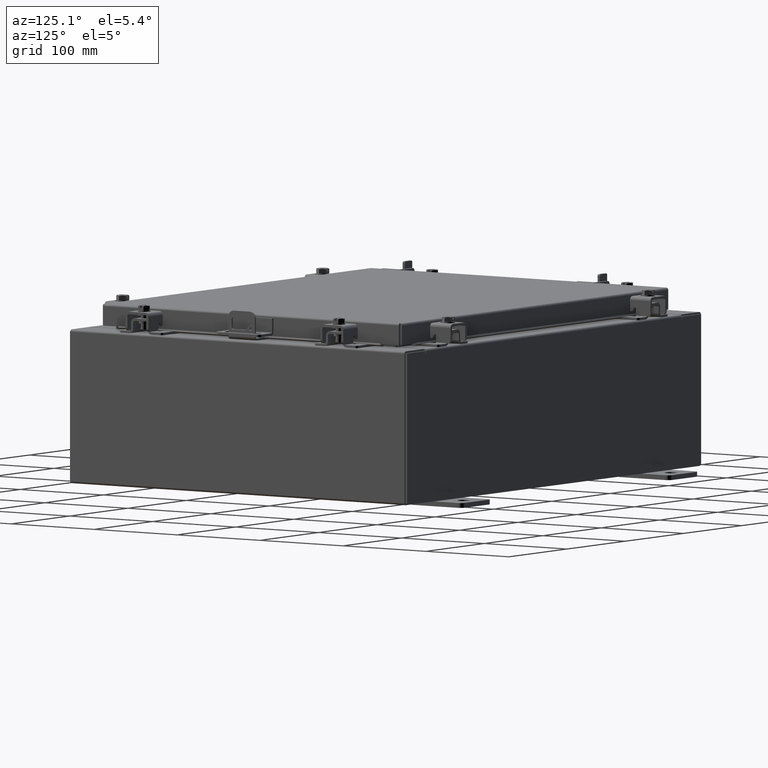
[diagram: clean part render]
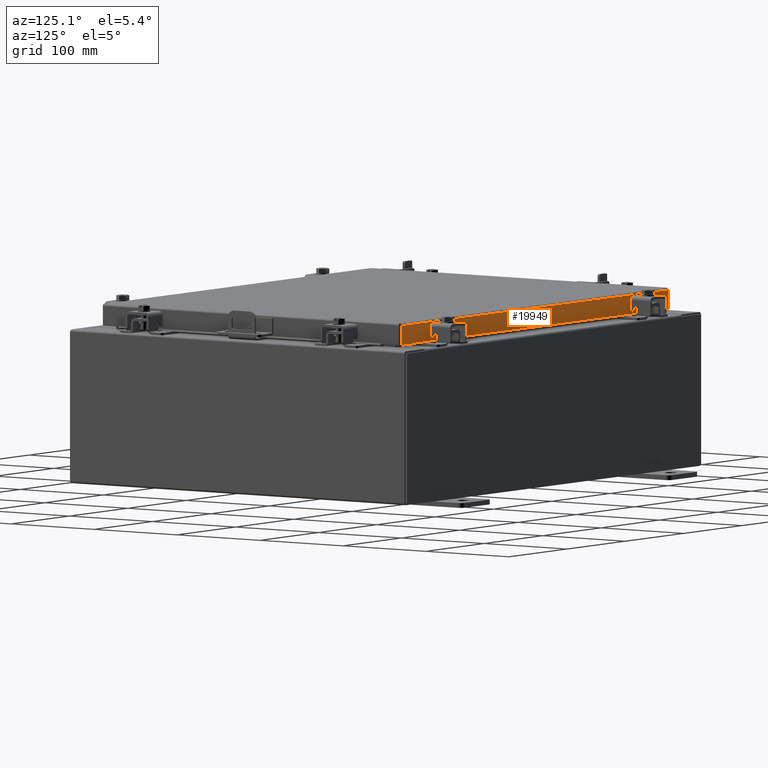
[diagram: same view with one face highlighted and labeled with its STEP entity id]
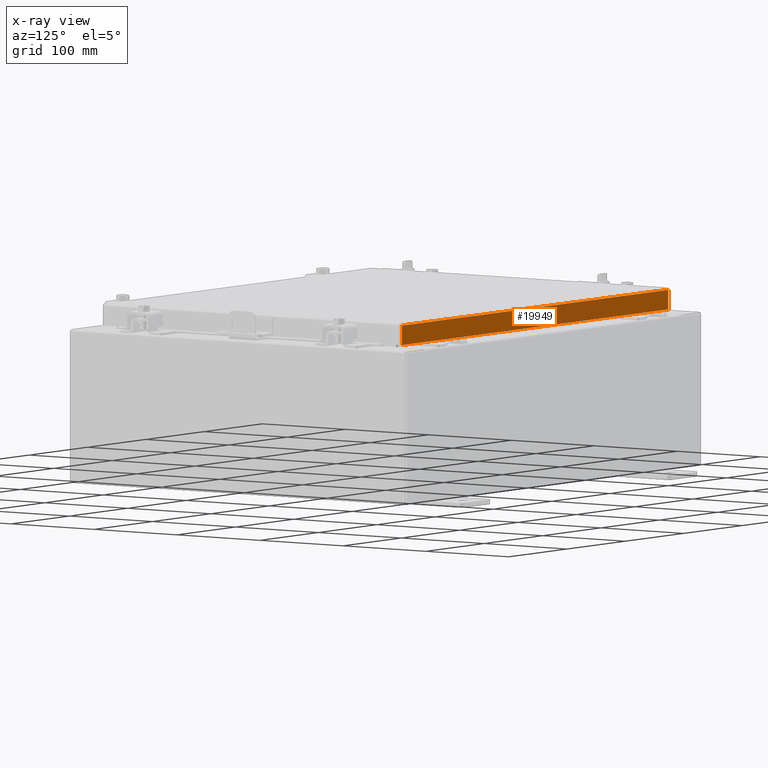
[diagram: x-ray of the same camera — body ghosted, the highlighted face saturated]
A machine part, auxiliary view. The second image highlights one B-rep face of the part: STEP entity #19949.
The next image is the same camera in x-ray: the body ghosted, the highlighted face saturated — about 0% of this face is hidden behind the body in this view.
In plain terms, the highlighted planar face has unit normal (0, -1, -0).
Its self-contained STEP definition (entity closure, byte-faithful):
#285 = CARTESIAN_POINT ( 'NONE',  ( -8.989157864376265300, 7.094000000000002100, -0.8500000000000019800 ) ) ;
#1084 = EDGE_CURVE ( 'NONE', #8246, #2258, #13635, .T. ) ;
#1391 = CARTESIAN_POINT ( 'NONE',  ( 8.239157864376270600, 7.094000000000000300, -0.8500000000000029800 ) ) ;
#1538 = CARTESIAN_POINT ( 'NONE',  ( -9.077999999999995900, 7.094000000000000300, -0.08770000000000007000 ) ) ;
#1670 = ORIENTED_EDGE ( 'NONE', *, *, #14073, .F. ) ;
#1929 = EDGE_LOOP ( 'NONE', ( #11310, #15492, #3639, #5063, #1670, #13531 ) ) ;
#2258 = VERTEX_POINT ( 'NONE', #1391 ) ;
#2531 = VECTOR ( 'NONE', #16522, 39.37007874015748100 ) ;
#3011 = LINE ( 'NONE', #3571, #2531 ) ;
#3110 = CARTESIAN_POINT ( 'NONE',  ( 8.989157864376270600, 7.094000000000002100, -0.8499999999999996400 ) ) ;
#3571 = CARTESIAN_POINT ( 'NONE',  ( -9.077999999999995900, 7.094000000000002100, -0.8500000000000019800 ) ) ;
#3639 = ORIENTED_EDGE ( 'NONE', *, *, #17680, .F. ) ;
#3850 = EDGE_CURVE ( 'NONE', #14026, #14796, #10724, .T. ) ;
#5063 = ORIENTED_EDGE ( 'NONE', *, *, #1084, .F. ) ;
#6727 = LINE ( 'NONE', #9022, #11012 ) ;
#6805 = DIRECTION ( 'NONE',  ( 3.605222026166235700E-031, -1.000000000000000000, -2.818880942772351900E-015 ) ) ;
#8246 = VERTEX_POINT ( 'NONE', #14688 ) ;
#8317 = CARTESIAN_POINT ( 'NONE',  ( -8.989157864376265300, 7.094000000000000300, -0.08770000000000007000 ) ) ;
#8410 = VECTOR ( 'NONE', #13768, 39.37007874015748100 ) ;
#8475 = AXIS2_PLACEMENT_3D ( 'NONE', #16486, #6805, #18116 ) ;
#9022 = CARTESIAN_POINT ( 'NONE',  ( -9.077999999999995900, 7.094000000000002100, -0.8500000000000019800 ) ) ;
#9289 = VECTOR ( 'NONE', #17477, 39.37007874015748100 ) ;
#10063 = CARTESIAN_POINT ( 'NONE',  ( 8.989157864376270600, 7.094000000000000300, -0.08770000000000007000 ) ) ;
#10556 = CARTESIAN_POINT ( 'NONE',  ( 8.989157864376270600, 7.094000000000000300, 2.025795506403864500E-014 ) ) ;
#10574 = DIRECTION ( 'NONE',  ( 1.000000000000000000, -4.379057701015054300E-047, 1.278955053213607000E-016 ) ) ;
#10724 = LINE ( 'NONE', #14223, #18328 ) ;
#11012 = VECTOR ( 'NONE', #10574, 39.37007874015748100 ) ;
#11310 = ORIENTED_EDGE ( 'NONE', *, *, #12591, .F. ) ;
#11397 = VECTOR ( 'NONE', #12841, 39.37007874015748100 ) ;
#11599 = PLANE ( 'NONE',  #8475 ) ;
#12521 = DIRECTION ( 'NONE',  ( -0.0000000000000000000, 2.818880942772351900E-015, -1.000000000000000000 ) ) ;
#12591 = EDGE_CURVE ( 'NONE', #18865, #14026, #20007, .T. ) ;
#12746 = LINE ( 'NONE', #10556, #8410 ) ;
#12841 = DIRECTION ( 'NONE',  ( -1.000000000000000000, -3.605222026166235700E-031, -9.826997386333233300E-046 ) ) ;
#13531 = ORIENTED_EDGE ( 'NONE', *, *, #3850, .F. ) ;
#13635 = LINE ( 'NONE', #13965, #9289 ) ;
#13768 = DIRECTION ( 'NONE',  ( 0.0000000000000000000, 2.818880942772351900E-015, -1.000000000000000000 ) ) ;
#13965 = CARTESIAN_POINT ( 'NONE',  ( -8.239157864376267100, 7.094000000000000300, -0.8500000000000029800 ) ) ;
#14026 = VERTEX_POINT ( 'NONE', #8317 ) ;
#14073 = EDGE_CURVE ( 'NONE', #14796, #8246, #3011, .T. ) ;
#14223 = CARTESIAN_POINT ( 'NONE',  ( -8.989157864376265300, 7.094000000000000300, -0.07469999999999978000 ) ) ;
#14688 = CARTESIAN_POINT ( 'NONE',  ( -8.239157864376267100, 7.094000000000000300, -0.8500000000000029800 ) ) ;
#14796 = VERTEX_POINT ( 'NONE', #285 ) ;
#15492 = ORIENTED_EDGE ( 'NONE', *, *, #19586, .T. ) ;
#16486 = CARTESIAN_POINT ( 'NONE',  ( -2.557544505362327600E-030, 7.094000000000000300, 2.025795506403864500E-014 ) ) ;
#16522 = DIRECTION ( 'NONE',  ( 1.000000000000000000, -4.379057701015054300E-047, 1.278955053213607000E-016 ) ) ;
#16757 = FACE_OUTER_BOUND ( 'NONE', #1929, .T. ) ;
#17477 = DIRECTION ( 'NONE',  ( 1.000000000000000000, -0.0000000000000000000, -0.0000000000000000000 ) ) ;
#17680 = EDGE_CURVE ( 'NONE', #2258, #19728, #6727, .T. ) ;
#18116 = DIRECTION ( 'NONE',  ( 0.0000000000000000000, 2.818880942772351900E-015, -1.000000000000000000 ) ) ;
#18328 = VECTOR ( 'NONE', #12521, 39.37007874015748100 ) ;
#18865 = VERTEX_POINT ( 'NONE', #10063 ) ;
#19586 = EDGE_CURVE ( 'NONE', #18865, #19728, #12746, .T. ) ;
#19728 = VERTEX_POINT ( 'NONE', #3110 ) ;
#19949 = ADVANCED_FACE ( 'NONE', ( #16757 ), #11599, .F. ) ;
#20007 = LINE ( 'NONE', #1538, #11397 ) ;